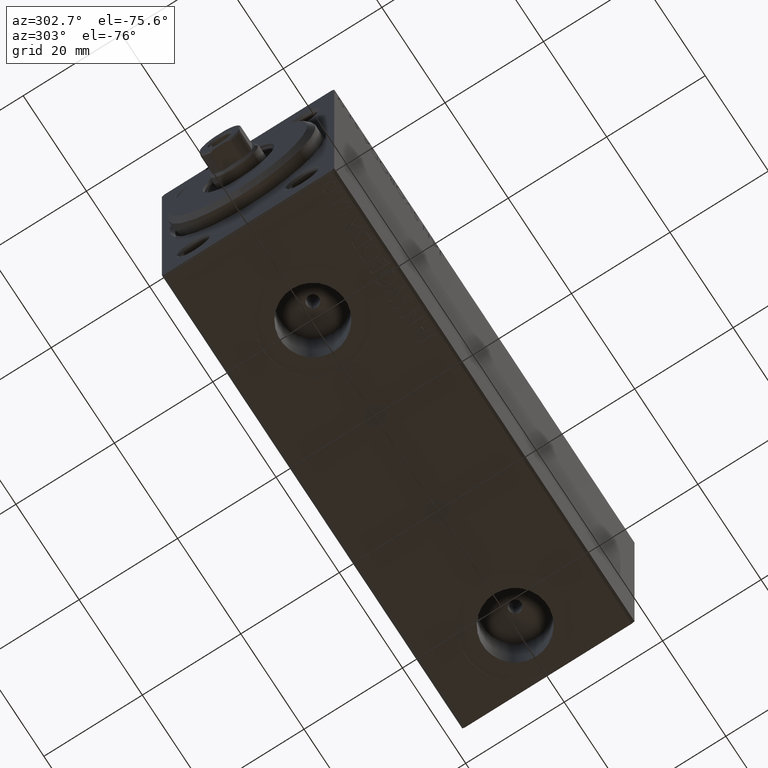
[diagram: clean part render]
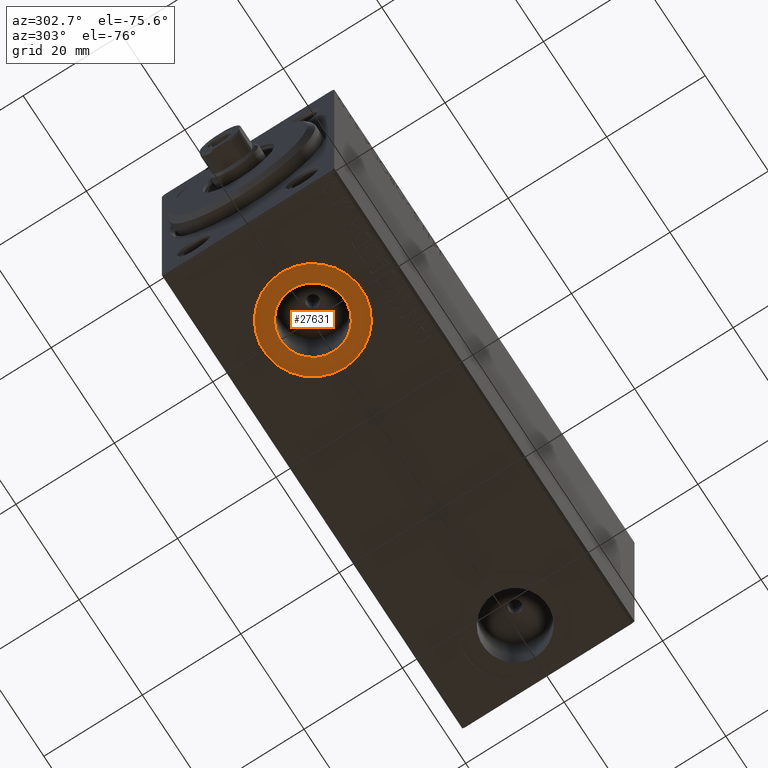
[diagram: same view with one face highlighted and labeled with its STEP entity id]
A machine part, auxiliary view. The second image highlights one B-rep face of the part: STEP entity #27631.
In plain terms, the highlighted planar face has unit normal (0, 0, -1).
Its self-contained STEP definition (entity closure, byte-faithful):
#621 = CARTESIAN_POINT ( 'NONE',  ( 13.92000000000000171, -2.726986211408916281E-15, -27.40000000000000924 ) ) ;
#1881 = EDGE_LOOP ( 'NONE', ( #23836, #32664 ) ) ;
#2173 = CARTESIAN_POINT ( 'NONE',  ( 0.000000000000000000, 0.000000000000000000, -27.40000000000000924 ) ) ;
#2741 = ORIENTED_EDGE ( 'NONE', *, *, #28755, .T. ) ;
#6417 = DIRECTION ( 'NONE',  ( 0.000000000000000000, 0.000000000000000000, -1.000000000000000000 ) ) ;
#6857 = CIRCLE ( 'NONE', #8311, 10.00000000000000000 ) ;
#8311 = AXIS2_PLACEMENT_3D ( 'NONE', #40783, #44237, #9489 ) ;
#9489 = DIRECTION ( 'NONE',  ( -1.000000000000000000, 0.000000000000000000, 0.000000000000000000 ) ) ;
#10283 = ORIENTED_EDGE ( 'NONE', *, *, #37930, .T. ) ;
#10386 = CARTESIAN_POINT ( 'NONE',  ( 27.08000000000000540, -1.921168617569958028E-15, -27.40000000000000924 ) ) ;
#11910 = DIRECTION ( 'NONE',  ( -1.000000000000000000, 0.000000000000000000, 0.000000000000000000 ) ) ;
#12816 = VERTEX_POINT ( 'NONE', #45473 ) ;
#13752 = AXIS2_PLACEMENT_3D ( 'NONE', #2173, #22642, #33920 ) ;
#14230 = AXIS2_PLACEMENT_3D ( 'NONE', #32399, #28956, #11910 ) ;
#14257 = VERTEX_POINT ( 'NONE', #10386 ) ;
#16439 = FACE_OUTER_BOUND ( 'NONE', #33794, .T. ) ;
#18897 = AXIS2_PLACEMENT_3D ( 'NONE', #39123, #32690, #21639 ) ;
#19320 = CIRCLE ( 'NONE', #25212, 6.580000000000002736 ) ;
#21639 = DIRECTION ( 'NONE',  ( -1.000000000000000000, 0.000000000000000000, 0.000000000000000000 ) ) ;
#22642 = DIRECTION ( 'NONE',  ( 0.000000000000000000, 0.000000000000000000, -1.000000000000000000 ) ) ;
#23836 = ORIENTED_EDGE ( 'NONE', *, *, #44129, .F. ) ;
#25212 = AXIS2_PLACEMENT_3D ( 'NONE', #30814, #6417, #27811 ) ;
#27631 = ADVANCED_FACE ( 'NONE', ( #39226, #16439 ), #33233, .T. ) ;
#27748 = CIRCLE ( 'NONE', #18897, 10.00000000000000000 ) ;
#27811 = DIRECTION ( 'NONE',  ( -1.000000000000000000, 0.000000000000000000, 0.000000000000000000 ) ) ;
#28755 = EDGE_CURVE ( 'NONE', #12816, #32978, #27748, .T. ) ;
#28956 = DIRECTION ( 'NONE',  ( 0.000000000000000000, 0.000000000000000000, -1.000000000000000000 ) ) ;
#30814 = CARTESIAN_POINT ( 'NONE',  ( 20.50000000000000355, -2.726986211408916281E-15, -27.40000000000000924 ) ) ;
#32399 = CARTESIAN_POINT ( 'NONE',  ( 20.50000000000000355, -2.726986211408916281E-15, -27.40000000000000924 ) ) ;
#32602 = CIRCLE ( 'NONE', #14230, 6.580000000000002736 ) ;
#32664 = ORIENTED_EDGE ( 'NONE', *, *, #41654, .F. ) ;
#32690 = DIRECTION ( 'NONE',  ( 0.000000000000000000, 0.000000000000000000, -1.000000000000000000 ) ) ;
#32978 = VERTEX_POINT ( 'NONE', #37313 ) ;
#33233 = PLANE ( 'NONE',  #13752 ) ;
#33794 = EDGE_LOOP ( 'NONE', ( #10283, #2741 ) ) ;
#33920 = DIRECTION ( 'NONE',  ( -1.000000000000000000, 0.000000000000000000, -0.000000000000000000 ) ) ;
#37313 = CARTESIAN_POINT ( 'NONE',  ( 10.50000000000000355, -5.452980245086756226E-15, -27.40000000000000924 ) ) ;
#37930 = EDGE_CURVE ( 'NONE', #32978, #12816, #6857, .T. ) ;
#39123 = CARTESIAN_POINT ( 'NONE',  ( 20.50000000000000355, -5.452980245086756226E-15, -27.40000000000000924 ) ) ;
#39226 = FACE_BOUND ( 'NONE', #1881, .T. ) ;
#40783 = CARTESIAN_POINT ( 'NONE',  ( 20.50000000000000355, -5.452980245086756226E-15, -27.40000000000000924 ) ) ;
#40794 = VERTEX_POINT ( 'NONE', #621 ) ;
#41654 = EDGE_CURVE ( 'NONE', #14257, #40794, #19320, .T. ) ;
#44129 = EDGE_CURVE ( 'NONE', #40794, #14257, #32602, .T. ) ;
#44237 = DIRECTION ( 'NONE',  ( 0.000000000000000000, 0.000000000000000000, -1.000000000000000000 ) ) ;
#45473 = CARTESIAN_POINT ( 'NONE',  ( 30.50000000000000711, -4.228333445939403167E-15, -27.40000000000000924 ) ) ;